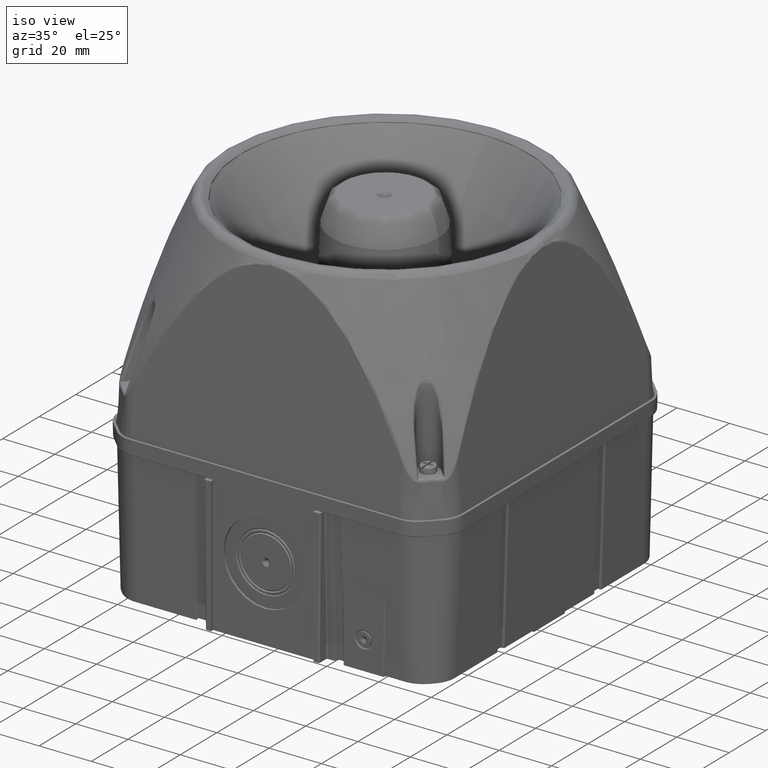
[diagram: clean part render]
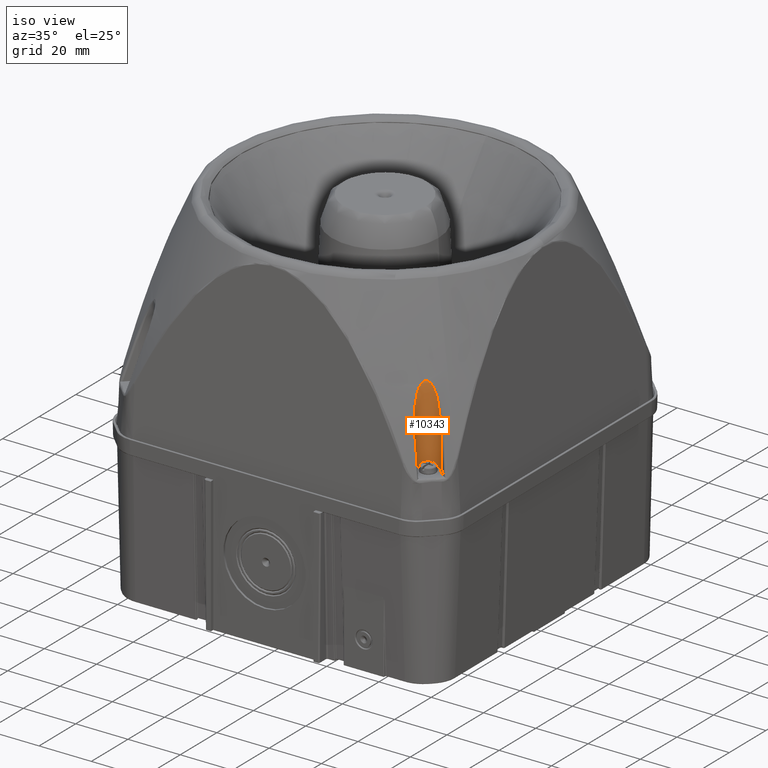
[diagram: same view with one face highlighted and labeled with its STEP entity id]
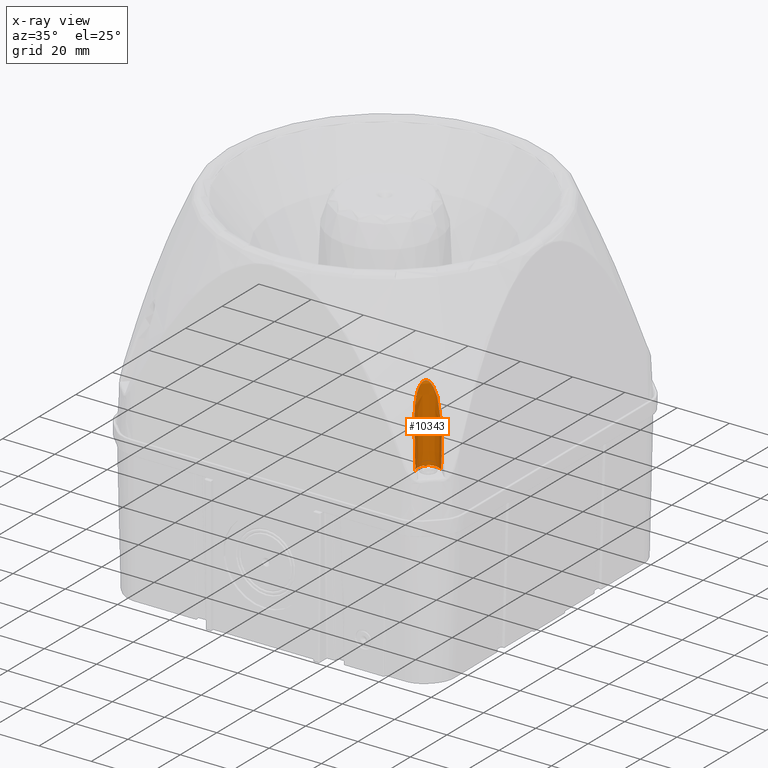
[diagram: x-ray of the same camera — body ghosted, the highlighted face saturated]
A machine part, iso view. The second image highlights one B-rep face of the part: STEP entity #10343.
The next image is the same camera in x-ray: the body ghosted, the highlighted face saturated — about 0% of this face is hidden behind the body in this view.
In plain terms, the highlighted conical surface has half-angle 1 deg.
Its self-contained STEP definition (entity closure, byte-faithful):
#2369=LINE('',#54305,#4535);
#2372=LINE('',#54323,#4538);
#4535=VECTOR('',#41790,1.);
#4538=VECTOR('',#41795,1.);
#6570=CONICAL_SURFACE('',#36930,4.5,1.);
#7580=FACE_OUTER_BOUND('',#13433,.T.);
#9627=B_SPLINE_CURVE_WITH_KNOTS('',3,(#54325,#54326,#54327,#54328,#54329,
#54330,#54331,#54332,#54333,#54334,#54335,#54336,#54337,#54338,#54339,#54340,
#54341,#54342),.UNSPECIFIED.,.F.,.F.,(4,2,2,2,2,2,2,2,4),(0.,0.249999999999998,
0.374999999999998,0.437499999999998,0.499999999999998,0.562499999999998,
0.624999999999998,0.749999999999999,1.),.UNSPECIFIED.);
#10343=ADVANCED_FACE('',(#7580),#6570,.F.);
#13433=EDGE_LOOP('',(#16481,#16482,#16483,#16484));
#16481=ORIENTED_EDGE('',*,*,#30036,.T.);
#16482=ORIENTED_EDGE('',*,*,#30037,.T.);
#16483=ORIENTED_EDGE('',*,*,#30031,.F.);
#16484=ORIENTED_EDGE('',*,*,#30038,.F.);
#26668=VERTEX_POINT('',#54306);
#26669=VERTEX_POINT('',#54307);
#26672=VERTEX_POINT('',#54317);
#26673=VERTEX_POINT('',#54322);
#30031=EDGE_CURVE('',#26668,#26669,#2369,.T.);
#30036=EDGE_CURVE('',#26672,#26673,#2372,.T.);
#30037=EDGE_CURVE('',#26673,#26669,#9627,.T.);
#30038=EDGE_CURVE('',#26672,#26668,#35055,.T.);
#35055=CIRCLE('',#36929,4.098533506651);
#36929=AXIS2_PLACEMENT_3D('',#54343,#41798,#41799);
#36930=AXIS2_PLACEMENT_3D('',#54344,#41800,#41801);
#41790=DIRECTION('',(-0.0123407149398269,-0.0123407149398269,0.999847695156391));
#41795=DIRECTION('',(0.012340714939827,0.0123407149398269,0.999847695156391));
#41798=DIRECTION('',(0.,0.,1.));
#41799=DIRECTION('',(0.999999999999999,0.,0.));
#41800=DIRECTION('',(0.,0.,1.));
#41801=DIRECTION('',(1.,0.,-1.26419920443762E-015));
#54305=CARTESIAN_POINT('',(51.8180194846606,-57.6819805153395,38.8500063183382));
#54306=CARTESIAN_POINT('',(52.1018991645268,-57.3981008354732,15.8500063183381));
#54307=CARTESIAN_POINT('',(51.9246940604564,-57.5753059395437,30.2072065080106));
#54317=CARTESIAN_POINT('',(57.8981008354732,-51.6018991645268,15.8500063183381));
#54322=CARTESIAN_POINT('',(58.0753059395436,-51.4246940604563,30.2072065080107));
#54323=CARTESIAN_POINT('',(58.1819805153395,-51.3180194846605,38.8500063183382));
#54325=CARTESIAN_POINT('',(58.0753059395436,-51.4246940604563,30.2072065080107));
#54326=CARTESIAN_POINT('',(57.5237699789214,-50.8069142877943,32.8907513070502));
#54327=CARTESIAN_POINT('',(56.8186200137569,-50.3359083910197,35.5665727092104));
#54328=CARTESIAN_POINT('',(55.430327410824,-49.9839322751291,39.5026543834085));
#54329=CARTESIAN_POINT('',(54.9084230986432,-49.9214939285835,40.8203121534984));
#54330=CARTESIAN_POINT('',(53.9545977030531,-50.0426362047047,42.6938917809918));
#54331=CARTESIAN_POINT('',(53.6081247070034,-50.116395095664,43.3067963793421));
#54332=CARTESIAN_POINT('',(52.7841096327372,-50.4478036575907,44.41299864893));
#54333=CARTESIAN_POINT('',(52.2630801918519,-50.7249860747731,44.9599801728542));
#54334=CARTESIAN_POINT('',(51.2400553400376,-51.7420231247812,44.9734118365874));
#54335=CARTESIAN_POINT('',(50.9536737388071,-52.2734845770529,44.4236663040646));
#54336=CARTESIAN_POINT('',(50.621291205274,-53.0921077404665,43.3317793284587));
#54337=CARTESIAN_POINT('',(50.5446799018775,-53.4441066855729,42.7128849977779));
#54338=CARTESIAN_POINT('',(50.4209963744122,-54.4013825059391,40.8373001488574));
#54339=CARTESIAN_POINT('',(50.4827614742521,-54.9240326785967,39.519519351033));
#54340=CARTESIAN_POINT('',(50.8355052732117,-56.3203640719496,35.5635802307243));
#54341=CARTESIAN_POINT('',(51.3057530713907,-57.0227332784126,32.8957954609349));
#54342=CARTESIAN_POINT('',(51.9246940604563,-57.5753059395436,30.2072065080106));
#54343=CARTESIAN_POINT('',(55.,-54.5,15.8500063183381));
#54344=CARTESIAN_POINT('',(55.,-54.5,38.8500063183382));